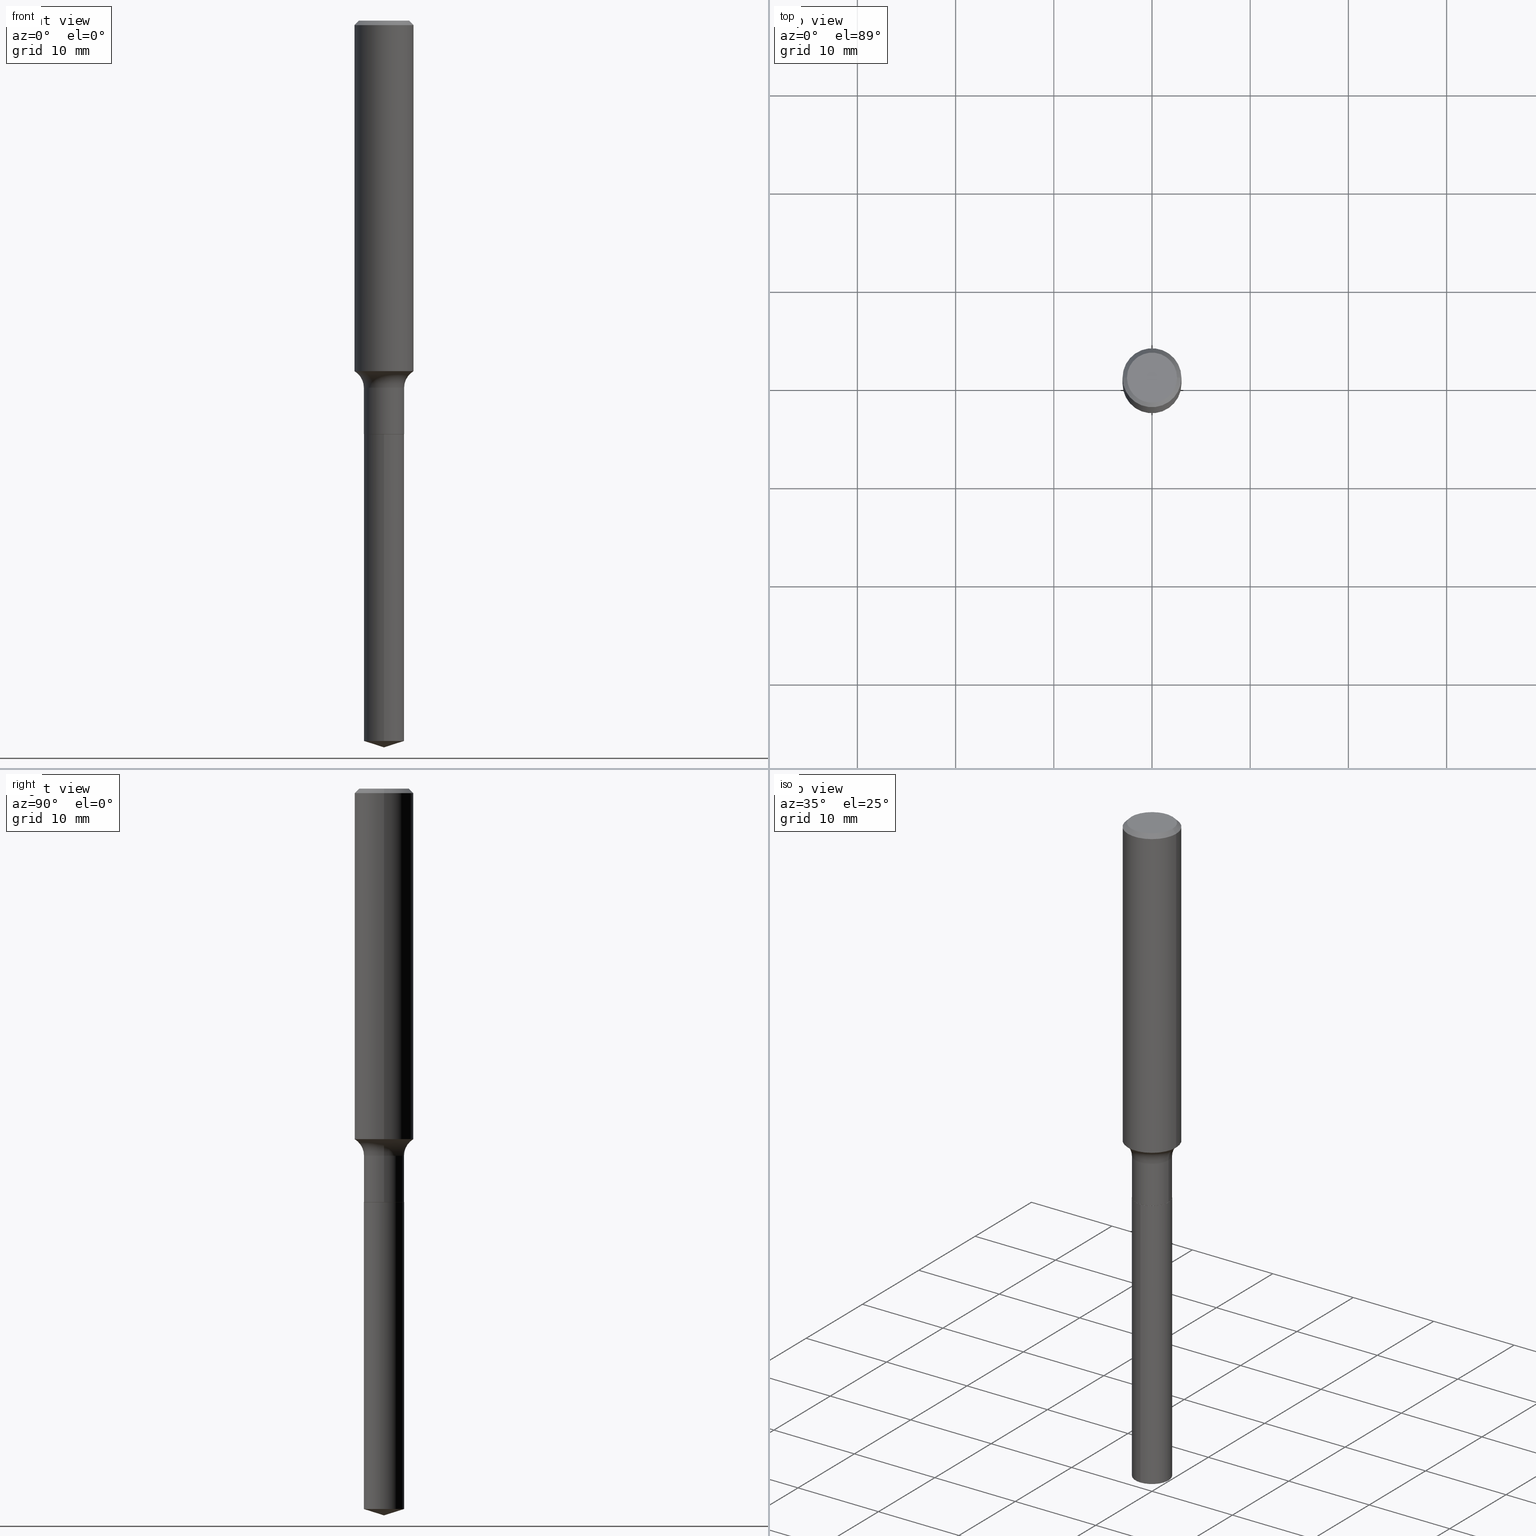
[diagram: canonical four-view strip — front | top / right | iso, engineering-drawing reading convention]
A machine part, canonical four-view strip (front | top / right | iso — engineering-drawing reading convention). The complete STEP part file that produces these views, byte-faithful:
ISO-10303-21;
HEADER;
FILE_DESCRIPTION (( 'STEP AP203' ),
    '1' );
FILE_NAME ('64111.STEP',
    '2024-04-19T15:14:06',
    ( '' ),
    ( '' ),
    'SwSTEP 2.0',
    'SolidWorks 2023',
    '' );
FILE_SCHEMA (( 'CONFIG_CONTROL_DESIGN' ));
ENDSEC;

DATA;
#1 = FACE_OUTER_BOUND ( 'NONE', #109, .T. ) ;
#2 = ORIENTED_EDGE ( 'NONE', *, *, #299, .T. ) ;
#3 = ADVANCED_FACE ( 'NONE', ( #421 ), #113, .T. ) ;
#4 = DIRECTION ( 'NONE',  ( -2.445468806185136877E-29, 3.491481338843145188E-15, 1.000000000000000000 ) ) ;
#5 = ORIENTED_EDGE ( 'NONE', *, *, #353, .F. ) ;
#6 = CIRCLE ( 'NONE', #246, 0.08019999999999999352 ) ;
#7 = CC_DESIGN_APPROVAL ( #100, ( #392 ) ) ;
#8 = CARTESIAN_POINT ( 'NONE',  ( 4.332147990156998495E-31, -6.185159191760672860E-17, -0.01771500000000011607 ) ) ;
#9 = ORIENTED_EDGE ( 'NONE', *, *, #281, .F. ) ;
#10 = VERTEX_POINT ( 'NONE', #278 ) ;
#11 = CARTESIAN_POINT ( 'NONE',  ( -0.1180999999999999966, -1.645063139276093092E-15, -0.01771500000000011607 ) ) ;
#12 = VECTOR ( 'NONE', #225, 39.37007874015748143 ) ;
#13 = CC_DESIGN_PERSON_AND_ORGANIZATION_ASSIGNMENT ( #361, #219, ( #392 ) ) ;
#14 = CARTESIAN_POINT ( 'NONE',  ( 4.053364546251863371E-29, -5.787130319132513889E-15, -1.657499999999999973 ) ) ;
#15 = PERSON_AND_ORGANIZATION_ROLE ( 'classification_officer' ) ;
#16 = CARTESIAN_POINT ( 'NONE',  ( 0.08019999999999999352, -6.347163925882951955E-15, -1.657499999999999973 ) ) ;
#17 = APPROVAL_ROLE ( '' ) ;
#18 = EDGE_CURVE ( 'NONE', #191, #10, #481, .T. ) ;
#19 = DIRECTION ( 'NONE',  ( 0.7071067811866199593, -2.468850131083015945E-15, 0.7071067811864750752 ) ) ;
#20 = CALENDAR_DATE ( 2024, 19, 4 ) ;
#21 = AXIS2_PLACEMENT_3D ( 'NONE', #356, #207, #467 ) ;
#22 = CIRCLE ( 'NONE', #248, 0.08019999999999999352 ) ;
#23 = DIRECTION ( 'NONE',  ( 1.000000000000000000, -6.982962677686266711E-15, 4.876176775795935793E-29 ) ) ;
#24 = CC_DESIGN_DATE_AND_TIME_ASSIGNMENT ( #94, #259, ( #188 ) ) ;
#25 = DATE_AND_TIME ( #398, #48 ) ;
#26 = FACE_OUTER_BOUND ( 'NONE', #385, .T. ) ;
#27 = ORIENTED_EDGE ( 'NONE', *, *, #18, .F. ) ;
#28 = CARTESIAN_POINT ( 'NONE',  ( 0.1181000000000001077, -8.246878922347488542E-16, 5.758764772215005345E-30 ) ) ;
#29 = ORIENTED_EDGE ( 'NONE', *, *, #274, .F. ) ;
#30 = AXIS2_PLACEMENT_3D ( 'NONE', #81, #237, #351 ) ;
#31 = DIRECTION ( 'NONE',  ( -6.982962677686266711E-15, -1.000000000000000000, 3.385189583227092077E-15 ) ) ;
#32 = EDGE_LOOP ( 'NONE', ( #217, #337, #352, #329 ) ) ;
#33 = CYLINDRICAL_SURFACE ( 'NONE', #201, 0.08069999999999999396 ) ;
#34 = EDGE_LOOP ( 'NONE', ( #488, #491, #310 ) ) ;
#35 = FACE_OUTER_BOUND ( 'NONE', #368, .T. ) ;
#36 = EDGE_CURVE ( 'NONE', #405, #450, #229, .T. ) ;
#37 = EDGE_LOOP ( 'NONE', ( #117, #153 ) ) ;
#38 = CONICAL_SURFACE ( 'NONE', #76, 0.08019999999999999352, 0.7853981633975507526 ) ;
#39 = VERTEX_POINT ( 'NONE', #77 ) ;
#40 = VECTOR ( 'NONE', #374, 39.37007874015748143 ) ;
#41 = DIRECTION ( 'NONE',  ( 1.000000000000000000, -6.982962677686261977E-15, 0.000000000000000000 ) ) ;
#42 = DIRECTION ( 'NONE',  ( -2.445468806185136597E-29, 3.491481338843145583E-15, 1.000000000000000000 ) ) ;
#43 = LENGTH_MEASURE_WITH_UNIT ( LENGTH_MEASURE( 0.02539999999999999897 ), #357 );
#44 = ORIENTED_EDGE ( 'NONE', *, *, #178, .F. ) ;
#45 = CARTESIAN_POINT ( 'NONE',  ( 3.599485535823903241E-29, -5.139111382643227310E-15, -1.471900000000000208 ) ) ;
#46 = ORIENTED_EDGE ( 'NONE', *, *, #72, .T. ) ;
#47 = VECTOR ( 'NONE', #270, 39.37007874015748143 ) ;
#48 = LOCAL_TIME ( 11, 14, 6.000000000000000000, #167 ) ;
#49 = ORIENTED_EDGE ( 'NONE', *, *, #142, .F. ) ;
#50 = CARTESIAN_POINT ( 'NONE',  ( 0.1181000000000001354, -5.731264520734688193E-15, -1.405299399402107685 ) ) ;
#51 = EDGE_CURVE ( 'NONE', #240, #172, #349, .T. ) ;
#52 = DIRECTION ( 'NONE',  ( 1.000000000000000000, -6.982962677686266711E-15, 0.000000000000000000 ) ) ;
#53 = CIRCLE ( 'NONE', #122, 0.1180999999999999966 ) ;
#54 = AXIS2_PLACEMENT_3D ( 'NONE', #484, #179, #369 ) ;
#55 = CARTESIAN_POINT ( 'NONE',  ( -0.1180999999999999966, 7.628363003171412752E-16, -0.01771500000000011607 ) ) ;
#56 = EDGE_CURVE ( 'NONE', #150, #405, #126, .T. ) ;
#57 = DIRECTION ( 'NONE',  ( 1.000000000000000000, -6.982962677686265922E-15, 0.000000000000000000 ) ) ;
#58 = APPROVAL_STATUS ( 'not_yet_approved' ) ;
#59 = CARTESIAN_POINT ( 'NONE',  ( -0.08019999999999999352, -5.217275045052913192E-15, -1.657499999999999973 ) ) ;
#60 = COORDINATED_UNIVERSAL_TIME_OFFSET ( 5, 0, .BEHIND. ) ;
#61 = CIRCLE ( 'NONE', #341, 0.07799999999999995826 ) ;
#62 = AXIS2_PLACEMENT_3D ( 'NONE', #449, #343, #41 ) ;
#63 = CARTESIAN_POINT ( 'NONE',  ( -0.08069999999999998008, 5.734079877584007085E-16, -3.969580617835708043E-30 ) ) ;
#64 = LINE ( 'NONE', #438, #439 ) ;
#65 = ORIENTED_EDGE ( 'NONE', *, *, #435, .F. ) ;
#66 = PERSON_AND_ORGANIZATION ( #408, #355 ) ;
#67 = DIRECTION ( 'NONE',  ( -6.982962677686265922E-15, -1.000000000000000000, 3.500519750498784896E-15 ) ) ;
#68 = VERTEX_POINT ( 'NONE', #158 ) ;
#69 = AXIS2_PLACEMENT_3D ( 'NONE', #132, #321, #469 ) ;
#70 = CIRCLE ( 'NONE', #130, 0.1180999999999999966 ) ;
#71 = LINE ( 'NONE', #478, #12 ) ;
#72 = EDGE_CURVE ( 'NONE', #119, #68, #463, .T. ) ;
#73 = DIRECTION ( 'NONE',  ( -2.445468806185136597E-29, 3.491481338843145583E-15, 1.000000000000000000 ) ) ;
#74 = DIRECTION ( 'NONE',  ( 1.000000000000000000, -6.982962677686266711E-15, 4.875668750515086816E-29 ) ) ;
#75 = DIRECTION ( 'NONE',  ( -2.438088387897960049E-29, 3.491481338843145188E-15, 1.000000000000000000 ) ) ;
#76 = AXIS2_PLACEMENT_3D ( 'NONE', #216, #407, #174 ) ;
#77 = CARTESIAN_POINT ( 'NONE',  ( 0.08069999999999999396, -6.348909666552373459E-15, -1.657000000000000028 ) ) ;
#78 = DIRECTION ( 'NONE',  ( -1.000000000000000000, 6.982962677686266711E-15, 0.000000000000000000 ) ) ;
#79 = ORIENTED_EDGE ( 'NONE', *, *, #98, .F. ) ;
#80 =( NAMED_UNIT ( * ) PLANE_ANGLE_UNIT ( ) SI_UNIT ( $, .RADIAN. ) );
#81 = CARTESIAN_POINT ( 'NONE',  ( 0.000000000000000000, 0.000000000000000000, 0.000000000000000000 ) ) ;
#82 = ORIENTED_EDGE ( 'NONE', *, *, #218, .F. ) ;
#83 = CIRCLE ( 'NONE', #308, 0.08069999999999999396 ) ;
#84 = ADVANCED_FACE ( 'NONE', ( #86 ), #318, .T. ) ;
#85 = LINE ( 'NONE', #55, #196 ) ;
#86 = FACE_OUTER_BOUND ( 'NONE', #182, .T. ) ;
#87 = DIRECTION ( 'NONE',  ( 6.982962677686265922E-15, 1.000000000000000000, -3.491481836966133799E-15 ) ) ;
#88 = DIRECTION ( 'NONE',  ( 7.105427357601001859E-15, 1.000000000000000000, -3.491481338843145583E-15 ) ) ;
#89 = EDGE_CURVE ( 'NONE', #450, #266, #152, .T. ) ;
#90 = AXIS2_PLACEMENT_3D ( 'NONE', #8, #454, #78 ) ;
#91 = LINE ( 'NONE', #59, #145 ) ;
#92 = MECHANICAL_CONTEXT ( 'NONE', #136, 'mechanical' ) ;
#93 = CARTESIAN_POINT ( 'NONE',  ( 5.734079877584715087E-16, 0.08069999999998991869, -2.887955387737466406 ) ) ;
#94 = DATE_AND_TIME ( #394, #116 ) ;
#95 = CARTESIAN_POINT ( 'NONE',  ( 7.124628969742446765E-29, -1.017208153253942839E-14, -2.913400000000000212 ) ) ;
#96 = APPROVAL_DATE_TIME ( #365, #163 ) ;
#97 = CIRCLE ( 'NONE', #231, 0.08069999999999999396 ) ;
#98 = EDGE_CURVE ( 'NONE', #172, #240, #314, .T. ) ;
#99 = FACE_OUTER_BOUND ( 'NONE', #34, .T. ) ;
#100 = APPROVAL ( #131, 'UNSPECIFIED' ) ;
#101 = ORIENTED_EDGE ( 'NONE', *, *, #422, .F. ) ;
#102 = DIRECTION ( 'NONE',  ( -2.445468806185136877E-29, 3.491481338843145188E-15, 1.000000000000000000 ) ) ;
#103 = ORIENTED_EDGE ( 'NONE', *, *, #391, .T. ) ;
#104 = CARTESIAN_POINT ( 'NONE',  ( -0.08069999999999999396, -4.888839992794759829E-15, -1.657000000000000028 ) ) ;
#105 = ORIENTED_EDGE ( 'NONE', *, *, #281, .T. ) ;
#106 = EDGE_CURVE ( 'NONE', #344, #340, #6, .T. ) ;
#107 = CC_DESIGN_SECURITY_CLASSIFICATION ( #350, ( #392 ) ) ;
#108 = CARTESIAN_POINT ( 'NONE',  ( -8.915365737863024958E-28, 1.272878324830080893E-13, 36.45667874015747856 ) ) ;
#109 = EDGE_LOOP ( 'NONE', ( #82, #297, #214, #49 ) ) ;
#110 = DIRECTION ( 'NONE',  ( 2.445468806185136597E-29, -3.491481338843145583E-15, -1.000000000000000000 ) ) ;
#111 = EDGE_LOOP ( 'NONE', ( #261, #2 ) ) ;
#112 = FACE_OUTER_BOUND ( 'NONE', #304, .T. ) ;
#113 = CYLINDRICAL_SURFACE ( 'NONE', #30, 0.08069999999999998008 ) ;
#114 = FACE_OUTER_BOUND ( 'NONE', #32, .T. ) ;
#115 = AXIS2_PLACEMENT_3D ( 'NONE', #381, #42, #290 ) ;
#116 = LOCAL_TIME ( 11, 14, 6.000000000000000000, #60 ) ;
#117 = ORIENTED_EDGE ( 'NONE', *, *, #399, .F. ) ;
#118 = DIRECTION ( 'NONE',  ( 1.000000000000000000, -6.982962677686266711E-15, 0.000000000000000000 ) ) ;
#119 = VERTEX_POINT ( 'NONE', #50 ) ;
#120 = ORIENTED_EDGE ( 'NONE', *, *, #142, .T. ) ;
#121 = DIRECTION ( 'NONE',  ( -2.445468806185136597E-29, 3.491481338843145583E-15, 1.000000000000000000 ) ) ;
#122 = AXIS2_PLACEMENT_3D ( 'NONE', #428, #326, #52 ) ;
#123 = CIRCLE ( 'NONE', #239, 0.1181000000000002048 ) ;
#124 = FACE_OUTER_BOUND ( 'NONE', #311, .T. ) ;
#125 = DIRECTION ( 'NONE',  ( -6.982962677686265922E-15, -1.000000000000000000, 3.500519750498784896E-15 ) ) ;
#126 = LINE ( 'NONE', #286, #362 ) ;
#127 = SECURITY_CLASSIFICATION_LEVEL ( 'unclassified' ) ;
#128 = DIRECTION ( 'NONE',  ( -0.7071067811865454633, 2.468850131082235367E-15, -0.7071067811865495711 ) ) ;
#129 = CLOSED_SHELL ( 'NONE', ( #169, #451, #155, #367, #209, #3, #490, #84, #445, #331, #459, #243 ) ) ;
#130 = AXIS2_PLACEMENT_3D ( 'NONE', #147, #309, #118 ) ;
#131 = APPROVAL_STATUS ( 'not_yet_approved' ) ;
#132 = CARTESIAN_POINT ( 'NONE',  ( 7.062404386367842478E-29, -1.008324295661499903E-14, -2.887955387737465962 ) ) ;
#133 = PERSON_AND_ORGANIZATION ( #408, #355 ) ;
#134 = CARTESIAN_POINT ( 'NONE',  ( 0.000000000000000000, 0.000000000000000000, 0.000000000000000000 ) ) ;
#135 = EDGE_CURVE ( 'NONE', #405, #235, #400, .T. ) ;
#136 = APPLICATION_CONTEXT ( 'configuration controlled 3d designs of mechanical parts and assemblies' ) ;
#137 = CARTESIAN_POINT ( 'NONE',  ( -0.08019999999999999352, -5.214625817878801991E-15, -1.657499999999999973 ) ) ;
#138 = EDGE_LOOP ( 'NONE', ( #388, #105, #193, #453 ) ) ;
#139 = AXIS2_PLACEMENT_3D ( 'NONE', #476, #437, #432 ) ;
#140 = DIRECTION ( 'NONE',  ( 6.776566513254242360E-15, 0.9537169507482267106, 0.3007057995042735077 ) ) ;
#141 = CARTESIAN_POINT ( 'NONE',  ( 4.052141811848771691E-29, -5.785384578463092385E-15, -1.657000000000000028 ) ) ;
#142 = EDGE_CURVE ( 'NONE', #191, #221, #85, .T. ) ;
#143 = ORIENTED_EDGE ( 'NONE', *, *, #399, .T. ) ;
#144 = LINE ( 'NONE', #95, #416 ) ;
#145 = VECTOR ( 'NONE', #360, 39.37007874015748143 ) ;
#146 = VECTOR ( 'NONE', #213, 39.37007874015748143 ) ;
#147 = CARTESIAN_POINT ( 'NONE',  ( 4.332147990156998495E-31, -6.185159191760672860E-17, -0.01771500000000011607 ) ) ;
#148 = ORIENTED_EDGE ( 'NONE', *, *, #358, .T. ) ;
#149 = CARTESIAN_POINT ( 'NONE',  ( -5.635250880892411374E-16, -0.08070000000000578100, -1.657499999999999751 ) ) ;
#150 = VERTEX_POINT ( 'NONE', #431 ) ;
#151 = PLANE ( 'NONE',  #159 ) ;
#152 = CIRCLE ( 'NONE', #222, 0.08069999999999999396 ) ;
#153 = ORIENTED_EDGE ( 'NONE', *, *, #106, .F. ) ;
#154 = ORIENTED_EDGE ( 'NONE', *, *, #178, .T. ) ;
#155 = ADVANCED_FACE ( 'NONE', ( #390 ), #363, .T. ) ;
#156 = ORIENTED_EDGE ( 'NONE', *, *, #106, .T. ) ;
#157 = CLOSED_SHELL ( 'NONE', ( #251, #288, #406, #313, #443 ) ) ;
#158 = CARTESIAN_POINT ( 'NONE',  ( -0.1181000000000001354, -4.067425657567260156E-15, -1.405299399402107685 ) ) ;
#159 = AXIS2_PLACEMENT_3D ( 'NONE', #269, #380, #87 ) ;
#160 = AXIS2_PLACEMENT_3D ( 'NONE', #108, #442, #67 ) ;
#161 = CARTESIAN_POINT ( 'NONE',  ( -0.1587000000000000077, -4.011480060991947865E-15, -1.471900000000000208 ) ) ;
#162 = APPROVAL_STATUS ( 'not_yet_approved' ) ;
#163 = APPROVAL ( #58, 'UNSPECIFIED' ) ;
#164 = DIRECTION ( 'NONE',  ( 1.000000000000000000, -6.982962677686268288E-15, 0.000000000000000000 ) ) ;
#165 = CARTESIAN_POINT ( 'NONE',  ( 0.000000000000000000, 0.000000000000000000, 0.000000000000000000 ) ) ;
#166 = AXIS2_PLACEMENT_3D ( 'NONE', #366, #257, #265 ) ;
#167 = COORDINATED_UNIVERSAL_TIME_OFFSET ( 5, 0, .BEHIND. ) ;
#168 = DIRECTION ( 'NONE',  ( -1.000000000000000000, 7.105427357601001859E-15, 0.000000000000000000 ) ) ;
#169 = ADVANCED_FACE ( 'NONE', ( #475 ), #300, .T. ) ;
#170 = SHAPE_DEFINITION_REPRESENTATION ( #223, #492 ) ;
#171 = DIRECTION ( 'NONE',  ( 1.000000000000000000, -6.982962677686260400E-15, 0.000000000000000000 ) ) ;
#172 = VERTEX_POINT ( 'NONE', #241 ) ;
#173 = COORDINATED_UNIVERSAL_TIME_OFFSET ( 5, 0, .BEHIND. ) ;
#174 = DIRECTION ( 'NONE',  ( 1.000000000000000000, -6.982962677686265922E-15, 0.000000000000000000 ) ) ;
#175 = ORIENTED_EDGE ( 'NONE', *, *, #422, .T. ) ;
#176 = AXIS2_PLACEMENT_3D ( 'NONE', #426, #249, #395 ) ;
#177 = APPROVAL_PERSON_ORGANIZATION ( #66, #100, #396 ) ;
#178 = EDGE_CURVE ( 'NONE', #344, #303, #91, .T. ) ;
#179 = DIRECTION ( 'NONE',  ( -2.445468458347713186E-29, 3.491481836966133799E-15, 1.000000000000000000 ) ) ;
#180 = APPLICATION_CONTEXT ( 'configuration controlled 3d designs of mechanical parts and assemblies' ) ;
#181 = CARTESIAN_POINT ( 'NONE',  ( 5.734079877584715087E-16, 0.08069999999999420692, -1.657500000000000195 ) ) ;
#182 = EDGE_LOOP ( 'NONE', ( #187, #415, #307, #101 ) ) ;
#183 = DIRECTION ( 'NONE',  ( 1.000000000000000000, -6.982962677686268288E-15, 0.000000000000000000 ) ) ;
#184 = AXIS2_PLACEMENT_3D ( 'NONE', #165, #210, #354 ) ;
#185 = CONICAL_SURFACE ( 'NONE', #386, 124.8659371009121912, 1.265363707695885020 ) ;
#186 = DIRECTION ( 'NONE',  ( 1.000000000000000000, -6.982962677686265922E-15, 0.000000000000000000 ) ) ;
#187 = ORIENTED_EDGE ( 'NONE', *, *, #414, .F. ) ;
#188 = PRODUCT_DEFINITION ( 'UNKNOWN', '', #392, #276 ) ;
#189 = CARTESIAN_POINT ( 'NONE',  ( 4.332147990156998495E-31, -6.185159191760672860E-17, -0.01771500000000011607 ) ) ;
#190 = UNCERTAINTY_MEASURE_WITH_UNIT (LENGTH_MEASURE( 1.000000000000000082E-05 ), #302, 'distance_accuracy_value', 'NONE');
#191 = VERTEX_POINT ( 'NONE', #359 ) ;
#192 =( NAMED_UNIT ( * ) SI_UNIT ( $, .STERADIAN. ) SOLID_ANGLE_UNIT ( ) );
#193 = ORIENTED_EDGE ( 'NONE', *, *, #36, .T. ) ;
#194 = EDGE_CURVE ( 'NONE', #340, #39, #465, .T. ) ;
#195 = FACE_OUTER_BOUND ( 'NONE', #37, .T. ) ;
#196 = VECTOR ( 'NONE', #128, 39.37007874015748143 ) ;
#197 = ORIENTED_EDGE ( 'NONE', *, *, #51, .F. ) ;
#198 = DIMENSIONAL_EXPONENTS ( 1.000000000000000000, 0.000000000000000000, 0.000000000000000000, 0.000000000000000000, 0.000000000000000000, 0.000000000000000000, 0.000000000000000000 ) ;
#199 = EDGE_LOOP ( 'NONE', ( #458, #419, #233, #65 ) ) ;
#200 = CYLINDRICAL_SURFACE ( 'NONE', #184, 0.08069999999999998008 ) ;
#201 = AXIS2_PLACEMENT_3D ( 'NONE', #483, #376, #31 ) ;
#202 = CARTESIAN_POINT ( 'NONE',  ( -0.08069999999999998008, -4.888839992794759829E-15, -1.471900000000000208 ) ) ;
#203 = CIRCLE ( 'NONE', #62, 0.07799999999999995826 ) ;
#204 = FACE_OUTER_BOUND ( 'NONE', #111, .T. ) ;
#205 = PRODUCT_RELATED_PRODUCT_CATEGORY ( 'detail', '', ( #295 ) ) ;
#206 = CARTESIAN_POINT ( 'NONE',  ( 0.000000000000000000, 0.000000000000000000, 0.000000000000000000 ) ) ;
#207 = DIRECTION ( 'NONE',  ( -2.445468806185136597E-29, 3.491481338843145583E-15, 1.000000000000000000 ) ) ;
#208 = CALENDAR_DATE ( 2024, 19, 4 ) ;
#209 = ADVANCED_FACE ( 'NONE', ( #124 ), #200, .T. ) ;
#210 = DIRECTION ( 'NONE',  ( -2.445468806185136597E-29, 3.491481338843145583E-15, 1.000000000000000000 ) ) ;
#211 = VECTOR ( 'NONE', #102, 39.37007874015748143 ) ;
#212 = PERSON_AND_ORGANIZATION_ROLE ( 'creator' ) ;
#213 = DIRECTION ( 'NONE',  ( -2.445468806185136877E-29, 3.491481338843145188E-15, 1.000000000000000000 ) ) ;
#214 = ORIENTED_EDGE ( 'NONE', *, *, #236, .T. ) ;
#215 = APPLICATION_PROTOCOL_DEFINITION ( 'international standard', 'config_control_design', 1994, #180 ) ;
#216 = CARTESIAN_POINT ( 'NONE',  ( 4.053364546251863371E-29, -5.787130319132513889E-15, -1.657499999999999973 ) ) ;
#217 = ORIENTED_EDGE ( 'NONE', *, *, #228, .F. ) ;
#218 = EDGE_CURVE ( 'NONE', #10, #191, #279, .T. ) ;
#219 = PERSON_AND_ORGANIZATION_ROLE ( 'creator' ) ;
#220 = CARTESIAN_POINT ( 'NONE',  ( 0.08019999999999999352, -6.347163925882951955E-15, -1.657499999999999973 ) ) ;
#221 = VERTEX_POINT ( 'NONE', #11 ) ;
#222 = AXIS2_PLACEMENT_3D ( 'NONE', #14, #433, #242 ) ;
#223 = PRODUCT_DEFINITION_SHAPE ( 'NONE', 'NONE',  #188 ) ;
#224 = LOCAL_TIME ( 11, 14, 6.000000000000000000, #441 ) ;
#225 = DIRECTION ( 'NONE',  ( 0.7071067811865454633, -7.319954787623248157E-15, -0.7071067811865495711 ) ) ;
#226 = DIRECTION ( 'NONE',  ( -2.445468806185136597E-29, 3.491481338843145583E-15, 1.000000000000000000 ) ) ;
#227 = ORIENTED_EDGE ( 'NONE', *, *, #305, .F. ) ;
#228 = EDGE_CURVE ( 'NONE', #68, #240, #61, .T. ) ;
#229 = LINE ( 'NONE', #378, #47 ) ;
#230 = AXIS2_PLACEMENT_3D ( 'NONE', #252, #284, #472 ) ;
#231 = AXIS2_PLACEMENT_3D ( 'NONE', #272, #283, #420 ) ;
#232 = DIRECTION ( 'NONE',  ( -1.000000000000000000, 6.982962677686266711E-15, 0.000000000000000000 ) ) ;
#233 = ORIENTED_EDGE ( 'NONE', *, *, #51, .T. ) ;
#234 = DIRECTION ( 'NONE',  ( -2.445468806185136597E-29, 3.491481338843145583E-15, 1.000000000000000000 ) ) ;
#235 = VERTEX_POINT ( 'NONE', #93 ) ;
#236 = EDGE_CURVE ( 'NONE', #455, #221, #53, .T. ) ;
#237 = DIRECTION ( 'NONE',  ( -2.445468806185136597E-29, 3.491481338843145583E-15, 1.000000000000000000 ) ) ;
#238 = AXIS2_PLACEMENT_3D ( 'NONE', #134, #427, #282 ) ;
#239 = AXIS2_PLACEMENT_3D ( 'NONE', #371, #226, #183 ) ;
#240 = VERTEX_POINT ( 'NONE', #202 ) ;
#241 = CARTESIAN_POINT ( 'NONE',  ( 0.08069999999999998008, -5.702636470732508383E-15, -1.471900000000000208 ) ) ;
#242 = DIRECTION ( 'NONE',  ( -6.982962677686266711E-15, -1.000000000000000000, 3.385189583227092077E-15 ) ) ;
#243 = ADVANCED_FACE ( 'NONE', ( #35 ), #38, .T. ) ;
#244 = CC_DESIGN_DATE_AND_TIME_ASSIGNMENT ( #289, #285, ( #350 ) ) ;
#245 = DIRECTION ( 'NONE',  ( 1.000000000000000000, -6.982962677686267499E-15, 4.883557194083113462E-29 ) ) ;
#246 = AXIS2_PLACEMENT_3D ( 'NONE', #393, #316, #57 ) ;
#247 = DIRECTION ( 'NONE',  ( -2.445468806185136597E-29, 3.491481338843145583E-15, 1.000000000000000000 ) ) ;
#248 = AXIS2_PLACEMENT_3D ( 'NONE', #296, #444, #186 ) ;
#249 = DIRECTION ( 'NONE',  ( -2.445468806185136597E-29, 3.491481338843145583E-15, 1.000000000000000000 ) ) ;
#250 = APPROVAL_ROLE ( '' ) ;
#251 = ADVANCED_FACE ( 'NONE', ( #260 ), #33, .T. ) ;
#252 = CARTESIAN_POINT ( 'NONE',  ( 3.006365662761078129E-46, -4.292293396963677838E-32, -1.229361689324070654E-17 ) ) ;
#253 = PERSON_AND_ORGANIZATION ( #408, #355 ) ;
#254 = DIRECTION ( 'NONE',  ( 1.000000000000000000, -6.982962677686267499E-15, 4.883557194083113462E-29 ) ) ;
#255 = AXIS2_PLACEMENT_3D ( 'NONE', #206, #397, #23 ) ;
#256 = DATE_AND_TIME ( #468, #224 ) ;
#257 = DIRECTION ( 'NONE',  ( 2.438088387897960049E-29, -3.491481338843145188E-15, -1.000000000000000000 ) ) ;
#258 = ORIENTED_EDGE ( 'NONE', *, *, #387, .F. ) ;
#259 = DATE_TIME_ROLE ( 'creation_date' ) ;
#260 = FACE_OUTER_BOUND ( 'NONE', #370, .T. ) ;
#261 = ORIENTED_EDGE ( 'NONE', *, *, #89, .T. ) ;
#262 = DIRECTION ( 'NONE',  ( -2.445468458347713186E-29, 3.491481836966133799E-15, 1.000000000000000000 ) ) ;
#263 = ORIENTED_EDGE ( 'NONE', *, *, #358, .F. ) ;
#264 = APPROVAL_PERSON_ORGANIZATION ( #322, #382, #17 ) ;
#265 = DIRECTION ( 'NONE',  ( -1.000000000000000000, 6.982962677686265922E-15, -4.876176775795935793E-29 ) ) ;
#266 = VERTEX_POINT ( 'NONE', #181 ) ;
#267 = DIRECTION ( 'NONE',  ( 1.000000000000000000, -6.982962677686265922E-15, 4.876176775795935793E-29 ) ) ;
#268 = ORIENTED_EDGE ( 'NONE', *, *, #480, .T. ) ;
#269 = CARTESIAN_POINT ( 'NONE',  ( 4.053364546251863371E-29, -5.787130319132513889E-15, -1.657499999999999973 ) ) ;
#270 = DIRECTION ( 'NONE',  ( -2.445468458347713186E-29, 3.491481836966133799E-15, 1.000000000000000000 ) ) ;
#271 = CIRCLE ( 'NONE', #287, 0.08069999999999999396 ) ;
#272 = CARTESIAN_POINT ( 'NONE',  ( 4.052141811848771691E-29, -5.785384578463092385E-15, -1.657000000000000028 ) ) ;
#273 = ORIENTED_EDGE ( 'NONE', *, *, #89, .F. ) ;
#274 = EDGE_CURVE ( 'NONE', #150, #235, #144, .T. ) ;
#275 = PLANE ( 'NONE',  #489 ) ;
#276 = DESIGN_CONTEXT ( 'detailed design', #180, 'design' ) ;
#277 = ORIENTED_EDGE ( 'NONE', *, *, #414, .T. ) ;
#278 = CARTESIAN_POINT ( 'NONE',  ( 0.1003850000000000020, -7.803837484803599345E-16, -1.229361689323552810E-17 ) ) ;
#279 = CIRCLE ( 'NONE', #230, 0.1003850000000000020 ) ;
#280 = ORIENTED_EDGE ( 'NONE', *, *, #36, .F. ) ;
#281 = EDGE_CURVE ( 'NONE', #235, #405, #271, .T. ) ;
#282 = DIRECTION ( 'NONE',  ( 1.000000000000000000, -6.982962677686266711E-15, 4.876176775795935793E-29 ) ) ;
#283 = DIRECTION ( 'NONE',  ( -2.445468806185136597E-29, 3.491481338843145583E-15, 1.000000000000000000 ) ) ;
#284 = DIRECTION ( 'NONE',  ( -2.445468806185136597E-29, 3.491481338843145583E-15, 1.000000000000000000 ) ) ;
#285 = DATE_TIME_ROLE ( 'classification_date' ) ;
#286 = CARTESIAN_POINT ( 'NONE',  ( 7.124627806550228565E-29, -1.017208318381713506E-14, -2.913400000000000212 ) ) ;
#287 = AXIS2_PLACEMENT_3D ( 'NONE', #294, #262, #338 ) ;
#288 = ADVANCED_FACE ( 'NONE', ( #99 ), #364, .T. ) ;
#289 = DATE_AND_TIME ( #20, #471 ) ;
#290 = DIRECTION ( 'NONE',  ( 1.000000000000000000, -6.982962677686261977E-15, 0.000000000000000000 ) ) ;
#291 = LINE ( 'NONE', #28, #40 ) ;
#292 = CARTESIAN_POINT ( 'NONE',  ( 3.599485535823903241E-29, -5.139111382643227310E-15, -1.471900000000000208 ) ) ;
#293 = TOROIDAL_SURFACE ( 'NONE', #410, 0.1587000000000000077, 0.07799999999999995826 ) ;
#294 = CARTESIAN_POINT ( 'NONE',  ( 7.062404386367842478E-29, -1.008324295661499903E-14, -2.887955387737465962 ) ) ;
#295 = PRODUCT ( '64111', '64111', '', ( #92 ) ) ;
#296 = CARTESIAN_POINT ( 'NONE',  ( 4.053364546251863371E-29, -5.787130319132513889E-15, -1.657499999999999973 ) ) ;
#297 = ORIENTED_EDGE ( 'NONE', *, *, #305, .T. ) ;
#298 = PLANE ( 'NONE',  #166 ) ;
#299 = EDGE_CURVE ( 'NONE', #266, #450, #83, .T. ) ;
#300 = CONICAL_SURFACE ( 'NONE', #21, 0.08019999999999999352, 0.7853981633975507526 ) ;
#301 = CONICAL_SURFACE ( 'NONE', #90, 0.1180999999999999966, 0.7853981633974453924 ) ;
#302 =( CONVERSION_BASED_UNIT ( 'INCH', #43 ) LENGTH_UNIT ( ) NAMED_UNIT ( #198 ) );
#303 = VERTEX_POINT ( 'NONE', #104 ) ;
#304 = EDGE_LOOP ( 'NONE', ( #227, #27, #120, #175 ) ) ;
#305 = EDGE_CURVE ( 'NONE', #10, #455, #71, .T. ) ;
#306 = CARTESIAN_POINT ( 'NONE',  ( -5.635250880892111607E-16, -0.08070000000001009699, -2.887955387737465074 ) ) ;
#307 = ORIENTED_EDGE ( 'NONE', *, *, #320, .T. ) ;
#308 = AXIS2_PLACEMENT_3D ( 'NONE', #486, #487, #333 ) ;
#309 = DIRECTION ( 'NONE',  ( -2.445468806185136597E-29, 3.491481338843145583E-15, 1.000000000000000000 ) ) ;
#310 = ORIENTED_EDGE ( 'NONE', *, *, #135, .F. ) ;
#311 = EDGE_LOOP ( 'NONE', ( #148, #409, #79, #5 ) ) ;
#312 = CARTESIAN_POINT ( 'NONE',  ( 3.006365662761078129E-46, -4.292293396963677838E-32, -1.229361689324070654E-17 ) ) ;
#313 = ADVANCED_FACE ( 'NONE', ( #339 ), #402, .T. ) ;
#314 = CIRCLE ( 'NONE', #176, 0.08069999999999998008 ) ;
#315 = AXIS2_PLACEMENT_3D ( 'NONE', #189, #110, #232 ) ;
#316 = DIRECTION ( 'NONE',  ( -2.445468806185136597E-29, 3.491481338843145583E-15, 1.000000000000000000 ) ) ;
#317 = CARTESIAN_POINT ( 'NONE',  ( -8.915365737863024958E-28, 1.272878324830080893E-13, 36.45667874015747856 ) ) ;
#318 = CYLINDRICAL_SURFACE ( 'NONE', #238, 0.1181000000000001077 ) ;
#319 = APPROVAL_DATE_TIME ( #25, #382 ) ;
#320 = EDGE_CURVE ( 'NONE', #119, #455, #291, .T. ) ;
#321 = DIRECTION ( 'NONE',  ( -2.445468458347713186E-29, 3.491481836966133799E-15, 1.000000000000000000 ) ) ;
#322 = PERSON_AND_ORGANIZATION ( #408, #355 ) ;
#323 = DIRECTION ( 'NONE',  ( -6.659769872151617100E-15, -0.9537169507482246011, 0.3007057995042801135 ) ) ;
#324 = CC_DESIGN_APPROVAL ( #382, ( #350 ) ) ;
#325 = APPROVAL_DATE_TIME ( #256, #100 ) ;
#326 = DIRECTION ( 'NONE',  ( -2.445468806185136597E-29, 3.491481338843145583E-15, 1.000000000000000000 ) ) ;
#327 = COORDINATED_UNIVERSAL_TIME_OFFSET ( 5, 0, .BEHIND. ) ;
#328 = FACE_OUTER_BOUND ( 'NONE', #199, .T. ) ;
#329 = ORIENTED_EDGE ( 'NONE', *, *, #98, .T. ) ;
#330 = PERSON_AND_ORGANIZATION_ROLE ( 'design_owner' ) ;
#331 = ADVANCED_FACE ( 'NONE', ( #26 ), #298, .F. ) ;
#332 = CC_DESIGN_PERSON_AND_ORGANIZATION_ASSIGNMENT ( #253, #330, ( #295 ) ) ;
#333 = DIRECTION ( 'NONE',  ( -6.982962677686266711E-15, -1.000000000000000000, 3.385189583227092077E-15 ) ) ;
#334 = AXIS2_PLACEMENT_3D ( 'NONE', #312, #121, #74 ) ;
#335 = CC_DESIGN_APPROVAL ( #163, ( #188 ) ) ;
#336 = DIRECTION ( 'NONE',  ( -2.445468458347713186E-29, 3.491481836966133799E-15, 1.000000000000000000 ) ) ;
#337 = ORIENTED_EDGE ( 'NONE', *, *, #72, .F. ) ;
#338 = DIRECTION ( 'NONE',  ( -6.982962677686266711E-15, -1.000000000000000000, 6.770379166454184154E-15 ) ) ;
#339 = FACE_OUTER_BOUND ( 'NONE', #138, .T. ) ;
#340 = VERTEX_POINT ( 'NONE', #220 ) ;
#341 = AXIS2_PLACEMENT_3D ( 'NONE', #161, #88, #168 ) ;
#342 = CONICAL_SURFACE ( 'NONE', #315, 0.1180999999999999966, 0.7853981633974453924 ) ;
#343 = DIRECTION ( 'NONE',  ( -6.982962677686266711E-15, -1.000000000000000000, 3.491481338843145583E-15 ) ) ;
#344 = VERTEX_POINT ( 'NONE', #137 ) ;
#345 = DIRECTION ( 'NONE',  ( -2.445468458347713186E-29, 3.491481836966133799E-15, 1.000000000000000000 ) ) ;
#346 = EDGE_LOOP ( 'NONE', ( #143, #154, #263, #412 ) ) ;
#347 = CC_DESIGN_PERSON_AND_ORGANIZATION_ASSIGNMENT ( #133, #15, ( #350 ) ) ;
#348 = EDGE_LOOP ( 'NONE', ( #258, #268, #440, #197 ) ) ;
#349 = CIRCLE ( 'NONE', #115, 0.08069999999999998008 ) ;
#350 = SECURITY_CLASSIFICATION ( '', '', #127 ) ;
#351 = DIRECTION ( 'NONE',  ( 1.000000000000000000, -6.982962677686265133E-15, 4.876176775795935232E-29 ) ) ;
#352 = ORIENTED_EDGE ( 'NONE', *, *, #435, .T. ) ;
#353 = EDGE_CURVE ( 'NONE', #39, #172, #446, .T. ) ;
#354 = DIRECTION ( 'NONE',  ( 1.000000000000000000, -6.982962677686265133E-15, 4.876176775795935232E-29 ) ) ;
#355 = ORGANIZATION ( 'UNSPECIFIED', 'UNSPECIFIED', '' ) ;
#356 = CARTESIAN_POINT ( 'NONE',  ( 4.053364546251863371E-29, -5.787130319132513889E-15, -1.657499999999999973 ) ) ;
#357 =( LENGTH_UNIT ( ) NAMED_UNIT ( * ) SI_UNIT ( $, .METRE. ) );
#358 = EDGE_CURVE ( 'NONE', #39, #303, #448, .T. ) ;
#359 = CARTESIAN_POINT ( 'NONE',  ( -0.1003850000000000020, 7.319105043583384717E-16, -1.229361689324571704E-17 ) ) ;
#360 = DIRECTION ( 'NONE',  ( -0.7071067811866199593, 7.493145998870616062E-15, 0.7071067811864750752 ) ) ;
#361 = PERSON_AND_ORGANIZATION ( #408, #355 ) ;
#362 = VECTOR ( 'NONE', #323, 39.37007874015748854 ) ;
#363 = CYLINDRICAL_SURFACE ( 'NONE', #255, 0.1181000000000001077 ) ;
#364 = CONICAL_SURFACE ( 'NONE', #160, 124.8659371009121912, 1.265363707695885020 ) ;
#365 = DATE_AND_TIME ( #208, #482 ) ;
#366 = CARTESIAN_POINT ( 'NONE',  ( 1.503182831380539065E-46, -2.146146698481838919E-32, -6.146808446620353272E-18 ) ) ;
#367 = ADVANCED_FACE ( 'NONE', ( #328 ), #425, .F. ) ;
#368 = EDGE_LOOP ( 'NONE', ( #44, #156, #485, #403 ) ) ;
#369 = DIRECTION ( 'NONE',  ( -6.982962677686266711E-15, -1.000000000000000000, 3.385189583227092077E-15 ) ) ;
#370 = EDGE_LOOP ( 'NONE', ( #460, #103, #273, #280 ) ) ;
#371 = CARTESIAN_POINT ( 'NONE',  ( 3.436615844588562058E-29, -4.906576628499939141E-15, -1.405299399402107685 ) ) ;
#372 = ORIENTED_EDGE ( 'NONE', *, *, #320, .F. ) ;
#373 = EDGE_CURVE ( 'NONE', #68, #119, #123, .T. ) ;
#374 = DIRECTION ( 'NONE',  ( -2.445468806185136877E-29, 3.491481338843145188E-15, 1.000000000000000000 ) ) ;
#375 = ORIENTED_EDGE ( 'NONE', *, *, #236, .F. ) ;
#376 = DIRECTION ( 'NONE',  ( -2.445468458347713186E-29, 3.491481836966133799E-15, 1.000000000000000000 ) ) ;
#377 = FACE_OUTER_BOUND ( 'NONE', #462, .T. ) ;
#378 = CARTESIAN_POINT ( 'NONE',  ( -5.635250880892411374E-16, -0.08070000000000578100, -1.657499999999999751 ) ) ;
#379 = AXIS2_PLACEMENT_3D ( 'NONE', #292, #73, #254 ) ;
#380 = DIRECTION ( 'NONE',  ( 2.445468458347712625E-29, -3.491481836966133799E-15, -1.000000000000000000 ) ) ;
#381 = CARTESIAN_POINT ( 'NONE',  ( 3.599485535823903241E-29, -5.139111382643227310E-15, -1.471900000000000208 ) ) ;
#382 = APPROVAL ( #162, 'UNSPECIFIED' ) ;
#383 = EDGE_LOOP ( 'NONE', ( #46, #277, #375, #372 ) ) ;
#384 = CARTESIAN_POINT ( 'NONE',  ( 0.1180999999999999966, -8.865394841523548556E-16, -0.01771500000000011607 ) ) ;
#385 = EDGE_LOOP ( 'NONE', ( #423, #479 ) ) ;
#386 = AXIS2_PLACEMENT_3D ( 'NONE', #317, #345, #125 ) ;
#387 = EDGE_CURVE ( 'NONE', #303, #240, #401, .T. ) ;
#388 = ORIENTED_EDGE ( 'NONE', *, *, #391, .F. ) ;
#389 = CARTESIAN_POINT ( 'NONE',  ( 3.436615844588562058E-29, -4.906576628499939141E-15, -1.405299399402107685 ) ) ;
#390 = FACE_OUTER_BOUND ( 'NONE', #383, .T. ) ;
#391 = EDGE_CURVE ( 'NONE', #235, #266, #64, .T. ) ;
#392 = PRODUCT_DEFINITION_FORMATION_WITH_SPECIFIED_SOURCE ( 'ANY', '', #295, .NOT_KNOWN. ) ;
#393 = CARTESIAN_POINT ( 'NONE',  ( 4.053364546251863371E-29, -5.787130319132513889E-15, -1.657499999999999973 ) ) ;
#394 = CALENDAR_DATE ( 2024, 19, 4 ) ;
#395 = DIRECTION ( 'NONE',  ( 1.000000000000000000, -6.982962677686261977E-15, 0.000000000000000000 ) ) ;
#396 = APPROVAL_ROLE ( '' ) ;
#397 = DIRECTION ( 'NONE',  ( -2.445468806185136597E-29, 3.491481338843145583E-15, 1.000000000000000000 ) ) ;
#398 = CALENDAR_DATE ( 2024, 19, 4 ) ;
#399 = EDGE_CURVE ( 'NONE', #340, #344, #22, .T. ) ;
#400 = CIRCLE ( 'NONE', #69, 0.08069999999999999396 ) ;
#401 = LINE ( 'NONE', #63, #146 ) ;
#402 = CYLINDRICAL_SURFACE ( 'NONE', #54, 0.08069999999999999396 ) ;
#403 = ORIENTED_EDGE ( 'NONE', *, *, #480, .F. ) ;
#404 = PERSON_AND_ORGANIZATION ( #408, #355 ) ;
#405 = VERTEX_POINT ( 'NONE', #306 ) ;
#406 = ADVANCED_FACE ( 'NONE', ( #377 ), #185, .T. ) ;
#407 = DIRECTION ( 'NONE',  ( -2.445468806185136597E-29, 3.491481338843145583E-15, 1.000000000000000000 ) ) ;
#408 = PERSON ( 'UNSPECIFIED', 'UNSPECIFIED', 'UNSPECIFIED', ('UNSPECIFIED'), ('UNSPECIFIED'), ('UNSPECIFIED') ) ;
#409 = ORIENTED_EDGE ( 'NONE', *, *, #387, .T. ) ;
#410 = AXIS2_PLACEMENT_3D ( 'NONE', #45, #234, #245 ) ;
#411 = DIRECTION ( 'NONE',  ( -2.445468806185136597E-29, 3.491481338843145583E-15, 1.000000000000000000 ) ) ;
#412 = ORIENTED_EDGE ( 'NONE', *, *, #194, .F. ) ;
#413 = ORIENTED_EDGE ( 'NONE', *, *, #56, .T. ) ;
#414 = EDGE_CURVE ( 'NONE', #68, #221, #418, .T. ) ;
#415 = ORIENTED_EDGE ( 'NONE', *, *, #373, .T. ) ;
#416 = VECTOR ( 'NONE', #140, 39.37007874015748854 ) ;
#417 = APPROVAL_PERSON_ORGANIZATION ( #434, #163, #250 ) ;
#418 = LINE ( 'NONE', #466, #464 ) ;
#419 = ORIENTED_EDGE ( 'NONE', *, *, #228, .T. ) ;
#420 = DIRECTION ( 'NONE',  ( 1.000000000000000000, -6.982962677686260400E-15, 0.000000000000000000 ) ) ;
#421 = FACE_OUTER_BOUND ( 'NONE', #348, .T. ) ;
#422 = EDGE_CURVE ( 'NONE', #221, #455, #70, .T. ) ;
#423 = ORIENTED_EDGE ( 'NONE', *, *, #18, .T. ) ;
#424 = VECTOR ( 'NONE', #19, 39.37007874015748143 ) ;
#425 = TOROIDAL_SURFACE ( 'NONE', #379, 0.1587000000000000077, 0.07799999999999995826 ) ;
#426 = CARTESIAN_POINT ( 'NONE',  ( 3.599485535823903241E-29, -5.139111382643227310E-15, -1.471900000000000208 ) ) ;
#427 = DIRECTION ( 'NONE',  ( -2.445468806185136597E-29, 3.491481338843145583E-15, 1.000000000000000000 ) ) ;
#428 = CARTESIAN_POINT ( 'NONE',  ( 4.332147990156998495E-31, -6.185159191760672860E-17, -0.01771500000000011607 ) ) ;
#429 = CC_DESIGN_PERSON_AND_ORGANIZATION_ASSIGNMENT ( #473, #470, ( #392 ) ) ;
#430 = AXIS2_PLACEMENT_3D ( 'NONE', #141, #411, #171 ) ;
#431 = CARTESIAN_POINT ( 'NONE',  ( 7.124627806550228565E-29, -1.017208318381713506E-14, -2.913400000000000212 ) ) ;
#432 = DIRECTION ( 'NONE',  ( 1.000000000000000000, 0.000000000000000000, 0.000000000000000000 ) ) ;
#433 = DIRECTION ( 'NONE',  ( -2.445468458347713186E-29, 3.491481836966133799E-15, 1.000000000000000000 ) ) ;
#434 = PERSON_AND_ORGANIZATION ( #408, #355 ) ;
#435 = EDGE_CURVE ( 'NONE', #119, #172, #203, .T. ) ;
#436 = CARTESIAN_POINT ( 'NONE',  ( 0.08069999999999998008, -5.635250880892814680E-16, 3.935074658067318957E-30 ) ) ;
#437 = DIRECTION ( 'NONE',  ( 0.000000000000000000, 0.000000000000000000, 1.000000000000000000 ) ) ;
#438 = CARTESIAN_POINT ( 'NONE',  ( 5.734079877584412362E-16, 0.08069999999999420692, -1.657500000000000195 ) ) ;
#439 = VECTOR ( 'NONE', #336, 39.37007874015748143 ) ;
#440 = ORIENTED_EDGE ( 'NONE', *, *, #353, .T. ) ;
#441 = COORDINATED_UNIVERSAL_TIME_OFFSET ( 5, 0, .BEHIND. ) ;
#442 = DIRECTION ( 'NONE',  ( -2.445468458347713186E-29, 3.491481836966133799E-15, 1.000000000000000000 ) ) ;
#443 = ADVANCED_FACE ( 'NONE', ( #204 ), #151, .F. ) ;
#444 = DIRECTION ( 'NONE',  ( -2.445468806185136597E-29, 3.491481338843145583E-15, 1.000000000000000000 ) ) ;
#445 = ADVANCED_FACE ( 'NONE', ( #112 ), #342, .T. ) ;
#446 = LINE ( 'NONE', #436, #211 ) ;
#447 = AXIS2_PLACEMENT_3D ( 'NONE', #389, #247, #164 ) ;
#448 = CIRCLE ( 'NONE', #430, 0.08069999999999999396 ) ;
#449 = CARTESIAN_POINT ( 'NONE',  ( 0.1587000000000000077, -6.247307559592037218E-15, -1.471900000000000208 ) ) ;
#450 = VERTEX_POINT ( 'NONE', #149 ) ;
#451 = ADVANCED_FACE ( 'NONE', ( #1 ), #301, .T. ) ;
#452 = APPLICATION_PROTOCOL_DEFINITION ( 'international standard', 'config_control_design', 1994, #136 ) ;
#453 = ORIENTED_EDGE ( 'NONE', *, *, #299, .F. ) ;
#454 = DIRECTION ( 'NONE',  ( 2.445468806185136597E-29, -3.491481338843145583E-15, -1.000000000000000000 ) ) ;
#455 = VERTEX_POINT ( 'NONE', #384 ) ;
#456 =( GEOMETRIC_REPRESENTATION_CONTEXT ( 3 ) GLOBAL_UNCERTAINTY_ASSIGNED_CONTEXT ( ( #190 ) ) GLOBAL_UNIT_ASSIGNED_CONTEXT ( ( #302, #80, #192 ) ) REPRESENTATION_CONTEXT ( 'NONE', 'WORKASPACE' ) );
#457 = CARTESIAN_POINT ( 'NONE',  ( 4.053364546251863371E-29, -5.787130319132513889E-15, -1.657499999999999973 ) ) ;
#458 = ORIENTED_EDGE ( 'NONE', *, *, #373, .F. ) ;
#459 = ADVANCED_FACE ( 'NONE', ( #195 ), #275, .F. ) ;
#460 = ORIENTED_EDGE ( 'NONE', *, *, #135, .T. ) ;
#461 = CC_DESIGN_PERSON_AND_ORGANIZATION_ASSIGNMENT ( #404, #212, ( #188 ) ) ;
#462 = EDGE_LOOP ( 'NONE', ( #29, #413, #9 ) ) ;
#463 = CIRCLE ( 'NONE', #447, 0.1181000000000002048 ) ;
#464 = VECTOR ( 'NONE', #4, 39.37007874015748143 ) ;
#465 = LINE ( 'NONE', #16, #424 ) ;
#466 = CARTESIAN_POINT ( 'NONE',  ( -0.1181000000000001077, 8.391509709326790846E-16, -5.809262341591049389E-30 ) ) ;
#467 = DIRECTION ( 'NONE',  ( 1.000000000000000000, -6.982962677686265922E-15, 0.000000000000000000 ) ) ;
#468 = CALENDAR_DATE ( 2024, 19, 4 ) ;
#469 = DIRECTION ( 'NONE',  ( -6.982962677686266711E-15, -1.000000000000000000, 6.770379166454184154E-15 ) ) ;
#470 = PERSON_AND_ORGANIZATION_ROLE ( 'design_supplier' ) ;
#471 = LOCAL_TIME ( 11, 14, 6.000000000000000000, #327 ) ;
#472 = DIRECTION ( 'NONE',  ( 1.000000000000000000, -6.982962677686266711E-15, 4.875668750515086816E-29 ) ) ;
#473 = PERSON_AND_ORGANIZATION ( #408, #355 ) ;
#474 = MANIFOLD_SOLID_BREP ( 'Body-Move/Copy2[2]', #129 ) ;
#475 = FACE_OUTER_BOUND ( 'NONE', #346, .T. ) ;
#476 = CARTESIAN_POINT ( 'NONE',  ( 0.000000000000000000, 0.000000000000000000, 0.000000000000000000 ) ) ;
#477 = MANIFOLD_SOLID_BREP ( 'Body-Move/Copy2[1]', #157 ) ;
#478 = CARTESIAN_POINT ( 'NONE',  ( 0.1180999999999999966, -8.720764054544246253E-16, -0.01771500000000011607 ) ) ;
#479 = ORIENTED_EDGE ( 'NONE', *, *, #218, .T. ) ;
#480 = EDGE_CURVE ( 'NONE', #303, #39, #97, .T. ) ;
#481 = CIRCLE ( 'NONE', #334, 0.1003850000000000020 ) ;
#482 = LOCAL_TIME ( 11, 14, 6.000000000000000000, #173 ) ;
#483 = CARTESIAN_POINT ( 'NONE',  ( 4.053364546251863371E-29, -5.787130319132513889E-15, -1.657499999999999973 ) ) ;
#484 = CARTESIAN_POINT ( 'NONE',  ( 4.053364546251863371E-29, -5.787130319132513889E-15, -1.657499999999999973 ) ) ;
#485 = ORIENTED_EDGE ( 'NONE', *, *, #194, .T. ) ;
#486 = CARTESIAN_POINT ( 'NONE',  ( 4.053364546251863371E-29, -5.787130319132513889E-15, -1.657499999999999973 ) ) ;
#487 = DIRECTION ( 'NONE',  ( -2.445468458347713186E-29, 3.491481836966133799E-15, 1.000000000000000000 ) ) ;
#488 = ORIENTED_EDGE ( 'NONE', *, *, #56, .F. ) ;
#489 = AXIS2_PLACEMENT_3D ( 'NONE', #457, #75, #267 ) ;
#490 = ADVANCED_FACE ( 'NONE', ( #114 ), #293, .F. ) ;
#491 = ORIENTED_EDGE ( 'NONE', *, *, #274, .T. ) ;
#492 = ADVANCED_BREP_SHAPE_REPRESENTATION ( '64111', ( #477, #474, #139 ), #456 ) ;
ENDSEC;
END-ISO-10303-21;
